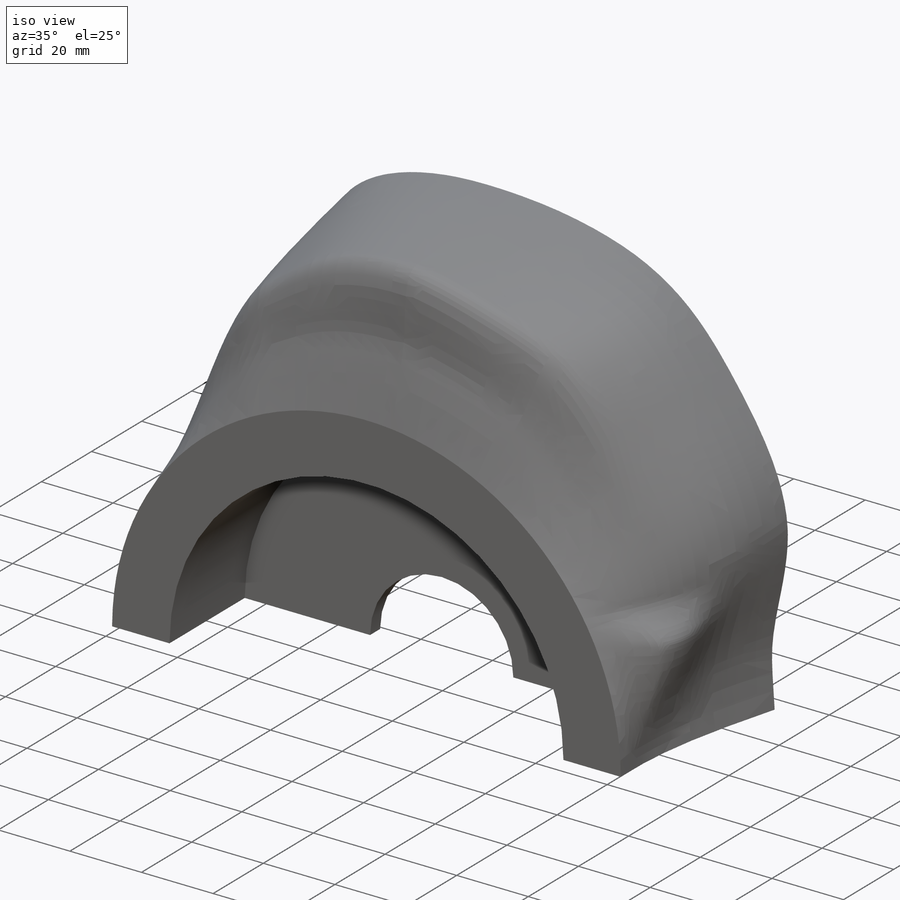
[diagram: iso view]
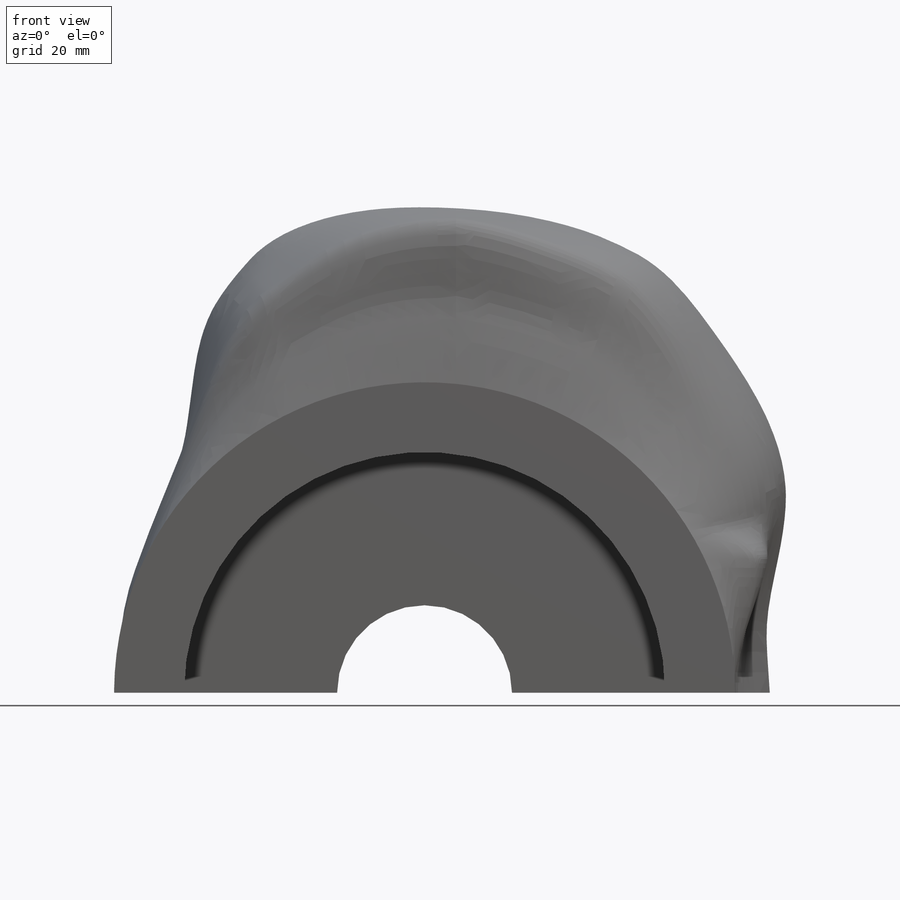
[diagram: front view]
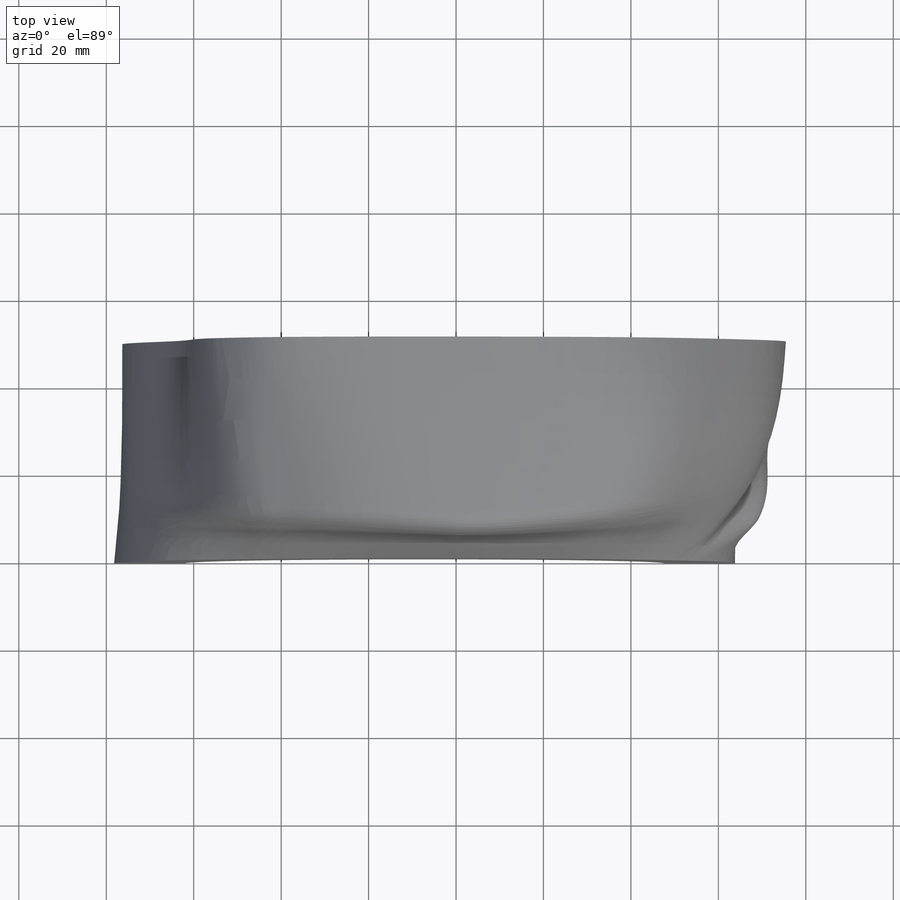
[diagram: top view]
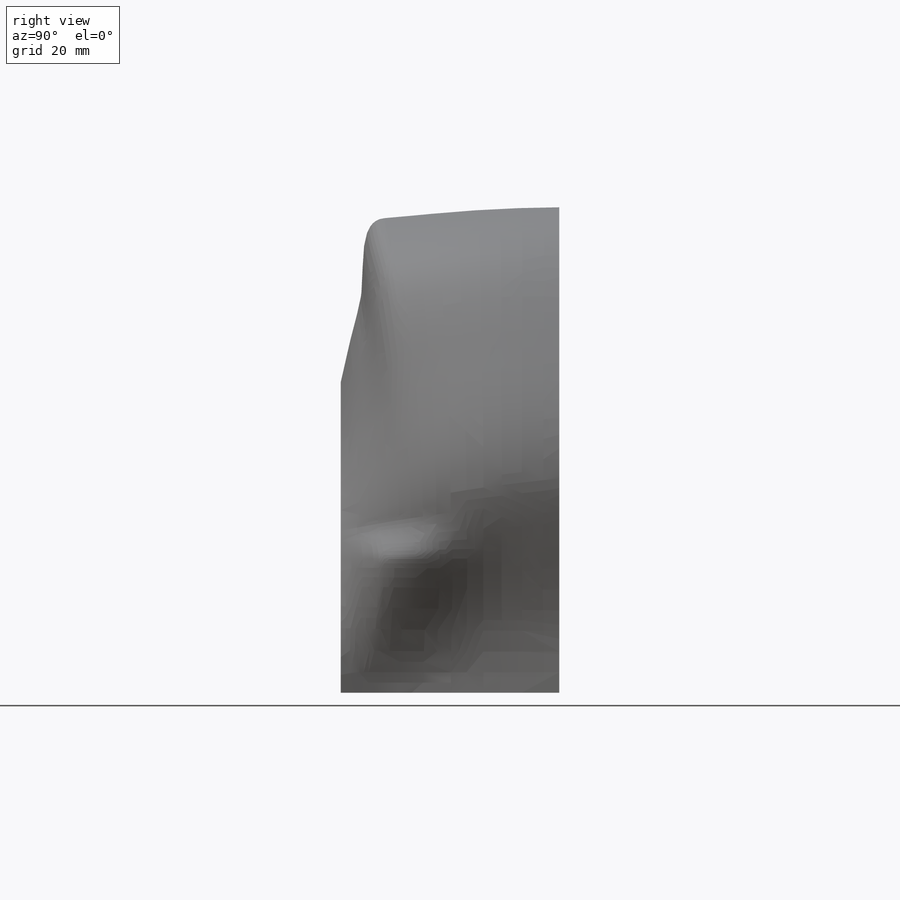
[diagram: right view]
SOLIDWORKS PART (.sldprt)
format: sldprt  version: not decoded by parser v0  size: 1,222,144 bytes
history: native  units: mm
features: sketch x6, cut_extrude x4, extrude x2, fillet x2, material x1 (+14 scaffold rows collapsed)
feature tree (29):
  scaffold x14  (default folders/planes/origin — collapsed)
  material  "Material <not specified>"
  sketch  "Sketch2"
  extrude  "Extrude2"  Depth=10mm
  sketch  "Sketch3"  dims[D1=4.9mm]
  cut_extrude  "Cut-Extrude1"  Depth=10mm
  sketch  "Sketch4"  dims[D1=4.9mm]
  cut_extrude  "Cut-Extrude2"  Depth=10mm
  sketch  "Sketch5"
  cut_extrude  "Extrude3"  Depth=20mm
  sketch  "Sketch6"  dims[D1=70.0mm]
  cut_extrude  "Extrude5"  Depth=20mm
  fillet  "Fillet1"  Radius=3mm
  sketch  "Sketch7"
  extrude  "Extrude6"  [1 undecoded]
  fillet  "Fillet2"  Radius=5mm
decode coverage: 10 of 14 modeling features carry decoded parameters
note: 1 parameter value undecoded
note: suppression state not decoded; provenance and decode notes live in map.json
